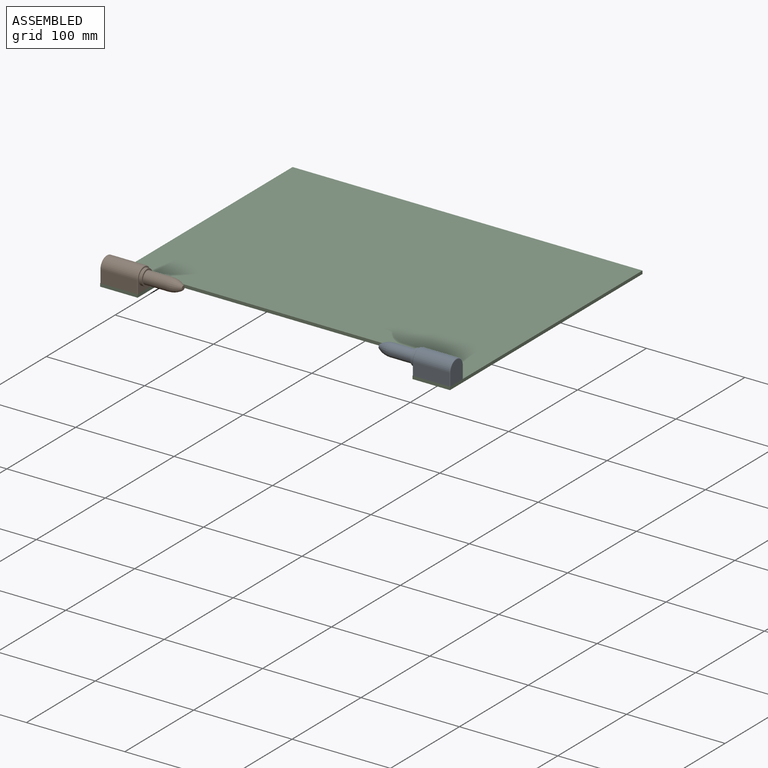
[diagram: assembled view]
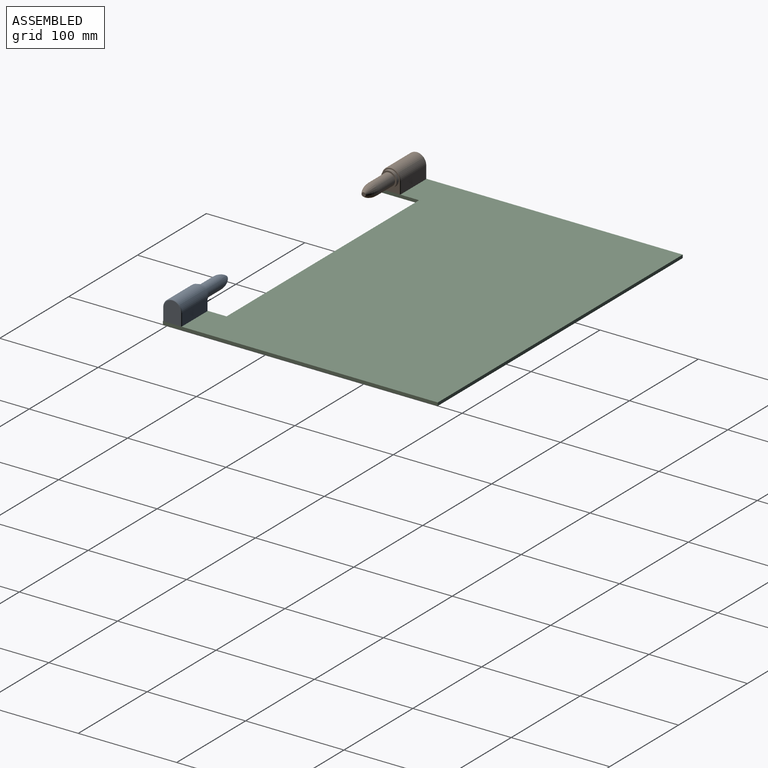
[diagram: assembled view, second angle]
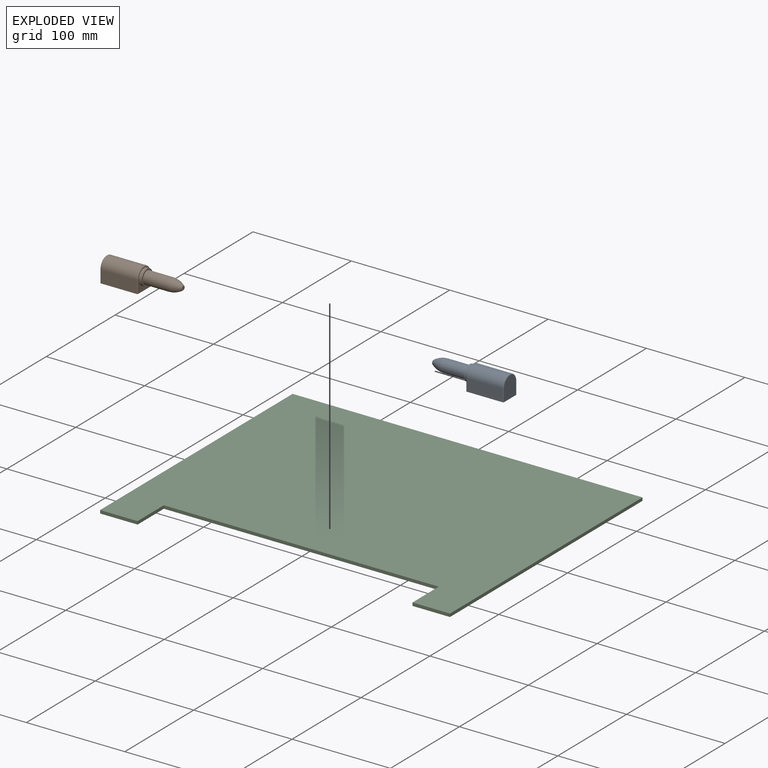
[diagram: exploded view]
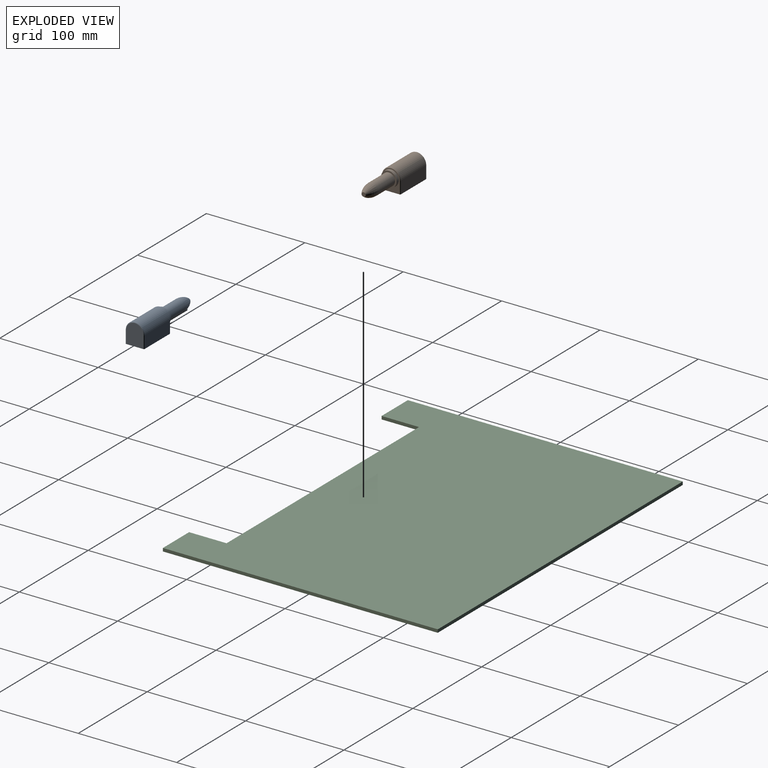
[diagram: exploded view, second angle]
ASSEMBLY  parts=3 mates=6
PART A: 46 faces, bbox 20.6x23.3x77.8 mm
  f0: cylinder r=3mm len=5.02mm, axis (0,-1,0), area 0.6mm2, adj f1,f2,f45
  f1: bspline ~4.88x1.96mm, area 0mm2, adj f0,f45
  f2: bspline ~6.02x6.02mm, area 60.8mm2, adj f0,f3,f7,f44,f45
  f3: cylinder r=2.48mm len=4.97mm, axis (0,-1,0), area 10.9mm2, adj f2,f4,f44,f45
  f4: bspline ~6x6mm, area 60.3mm2, adj f3,f5,f7,f44,f45
  f5: cylinder r=2.48mm len=3.73mm, axis (0,-1,0), area 0.4mm2, adj f4,f6,f45
  f6: bspline ~3.55x1.24mm, area 0mm2, adj f5,f45
  f7: cylinder r=3mm len=6mm, axis (0,-1,0), area 11.7mm2, adj f2,f4,f8,f45
  f8: plane 38.1x19.05mm, normal (0,-1,0), area 410.3mm2, adj f7,f9,f13,f19,f20,f21,f22,f23
  f9: cylinder r=0.76mm len=12.7mm, axis (0,-1,0), area 15.2mm2, adj f8,f10,f13,f24
  f10: torus R=8.76mm, axis (0,0,1), area 34.8mm2, adj f9,f11,f13,f19
  f11: cylinder r=9.53mm len=36.58mm, axis (0,0,1), area 1094.5mm2, adj f10,f12,f20,f24
  f12: torus R=8.76mm, axis (0,0,-1), area 34.8mm2, adj f11,f21,f22,f23
  f13: plane 21.46x17.53mm, normal (0,0,1), area 145.3mm2, adj f8,f9,f10,f14,f19
  f14: cylinder r=7.94mm len=15.88mm, axis (0,0,1), area 158.3mm2, adj f13,f15
  f15: plane 15.88x15.88mm, normal (0,0,1), area 71.3mm2, adj f14,f16
  f16: cylinder r=6.35mm len=23.81mm, axis (0,0,1), area 950.1mm2, adj f15,f17
  f17: revolved ~12.7x12.7mm, area 421mm2, adj f16,f18
  f18: plane 4.23x4.23mm, normal (0,0,1), area 14.1mm2, adj f17
  f19: cylinder r=0.76mm len=12.7mm, axis (0,-1,0), area 15.2mm2, adj f8,f10,f13,f20
  f20: plane 36.58x12.7mm, normal (1,0,0), area 464.5mm2, adj f8,f11,f19,f21
  f21: cylinder r=0.76mm len=12.7mm, axis (0,-1,0), area 15.2mm2, adj f8,f12,f20,f22
  f22: plane 21.46x17.53mm, normal (0,0,-1), area 343.2mm2, adj f8,f12,f21,f23
  f23: cylinder r=0.76mm len=12.7mm, axis (0,-1,0), area 15.2mm2, adj f8,f12,f22,f24
  f24: plane 36.58x12.7mm, normal (-1,0,0), area 464.5mm2, adj f8,f9,f11,f23
  f25: cylinder r=5.54mm len=11.08mm, axis (0,-1,0), area 122.1mm2, adj f8,f26,f27,f33
  f26: cylinder r=7.94mm len=25.4mm, axis (0,0,1), area 330mm2, adj f25,f27,f28,f29,f30,f31,f32,f33
  f27: plane 8.93x1.45mm, normal (0,0,-1), area 11.4mm2, adj f8,f25,f26,f28
  f28: plane 25.4x8.93mm, normal (1,0,0), area 226.8mm2, adj f8,f26,f27,f29
  f29: plane 8.93x1.45mm, normal (0,0,1), area 11.4mm2, adj f8,f26,f28,f30
  f30: cylinder r=5.54mm len=11.08mm, axis (0,-1,0), area 122.1mm2, adj f8,f26,f29,f31
  f31: plane 8.93x1.45mm, normal (0,0,1), area 11.4mm2, adj f8,f26,f30,f32
  f32: plane 25.4x8.93mm, normal (-1,0,0), area 226.8mm2, adj f8,f26,f31,f33
  f33: plane 8.93x1.45mm, normal (0,0,-1), area 11.4mm2, adj f8,f25,f26,f32
  f34: cylinder r=3mm len=6mm, axis (0,-1,0), area 11.7mm2, adj f8,f35,f39,f42
  f35: bspline ~6x6mm, area 60.3mm2, adj f34,f36,f38,f39,f43
  f36: cylinder r=2.48mm len=3.73mm, axis (0,-1,0), area 0.4mm2, adj f35,f37,f39
  f37: bspline ~3.55x1.24mm, area 0mm2, adj f36,f39
  f38: cylinder r=2.48mm len=4.97mm, axis (0,-1,0), area 10.9mm2, adj f35,f39,f42,f43
  f39: cylinder r=7.94mm len=5.69mm, axis (0,0,1), area 23.8mm2, adj f34,f35,f36,f37,f38,f40,f41,f42
  f40: bspline ~4.88x1.96mm, area 0mm2, adj f39,f41
  f41: cylinder r=3mm len=5.02mm, axis (0,-1,0), area 0.6mm2, adj f39,f40,f42
  f42: bspline ~6.02x6.02mm, area 60.8mm2, adj f34,f38,f39,f41,f43
  f43: cone r=3mm half-angle=45deg, axis (0,-1,0), area 6.4mm2, adj f8,f35,f38,f42
  f44: cone r=3mm half-angle=45deg, axis (0,-1,0), area 6.4mm2, adj f2,f3,f4,f8
  f45: cylinder r=7.94mm len=5.69mm, axis (0,0,1), area 23.8mm2, adj f0,f1,f2,f3,f4,f5,f6,f7
PART B: same geometry as A
PART C: 10 faces, bbox 355.6x279.4x3.2 mm
  f0: plane 38.1x3.18mm, normal (0,-1,0), area 121mm2, adj f1,f2,f6,f8
  f1: plane 355.6x279.4mm, normal (0,0,1), area 88709.5mm2, adj f0,f3,f4,f5,f6,f7,f8,f9
  f2: plane 355.6x279.4mm, normal (0,0,-1), area 88709.5mm2, adj f0,f3,f4,f5,f6,f7,f8,f9
  f3: plane 355.6x3.18mm, normal (0,1,0), area 1129mm2, adj f1,f2,f4,f6
  f4: plane 279.4x3.18mm, normal (-1,0,0), area 887.1mm2, adj f1,f2,f3,f5
  f5: plane 38.1x3.18mm, normal (0,-1,0), area 121mm2, adj f1,f2,f4,f7
  f6: plane 279.4x3.18mm, normal (1,0,0), area 887.1mm2, adj f0,f1,f2,f3
  f7: plane 38.1x3.18mm, normal (1,0,0), area 121mm2, adj f1,f2,f5,f9
  f8: plane 38.1x3.18mm, normal (-1,0,0), area 121mm2, adj f0,f1,f2,f9
  f9: plane 279.4x3.18mm, normal (0,-1,0), area 887.1mm2, adj f1,f2,f7,f8
PLACE A rot(axis=(0.58,-0.58,-0.58),120deg) t=(136.76,-129.92,14.47)mm
PLACE B rot(axis=(0.58,0.58,0.58),120deg) t=(-136.29,-129.92,14.47)mm
PLACE C t=(0.24,0.26,-1.41)mm fixed
MATE planar A.f9 <-> C.f1  axis (0,0,-1) through (140.7,-121.16,1.77)mm
MATE planar B.f24 <-> C.f5  axis (0,-1,0) through (-158.51,-139.44,8.12)mm
MATE planar B.f8 <-> C.f1  axis (0,0,-1) through (-171.21,-136.9,1.77)mm
MATE planar B.f13 <-> C.f7  axis (1,0,0) through (-139.46,-129.92,7.83)mm
MATE planar A.f20 <-> C.f0  axis (0,-1,0) through (158.99,-139.44,8.12)mm
MATE planar A.f11 <-> C.f6  axis (1,0,0) through (178.04,-129.92,14.47)mm
